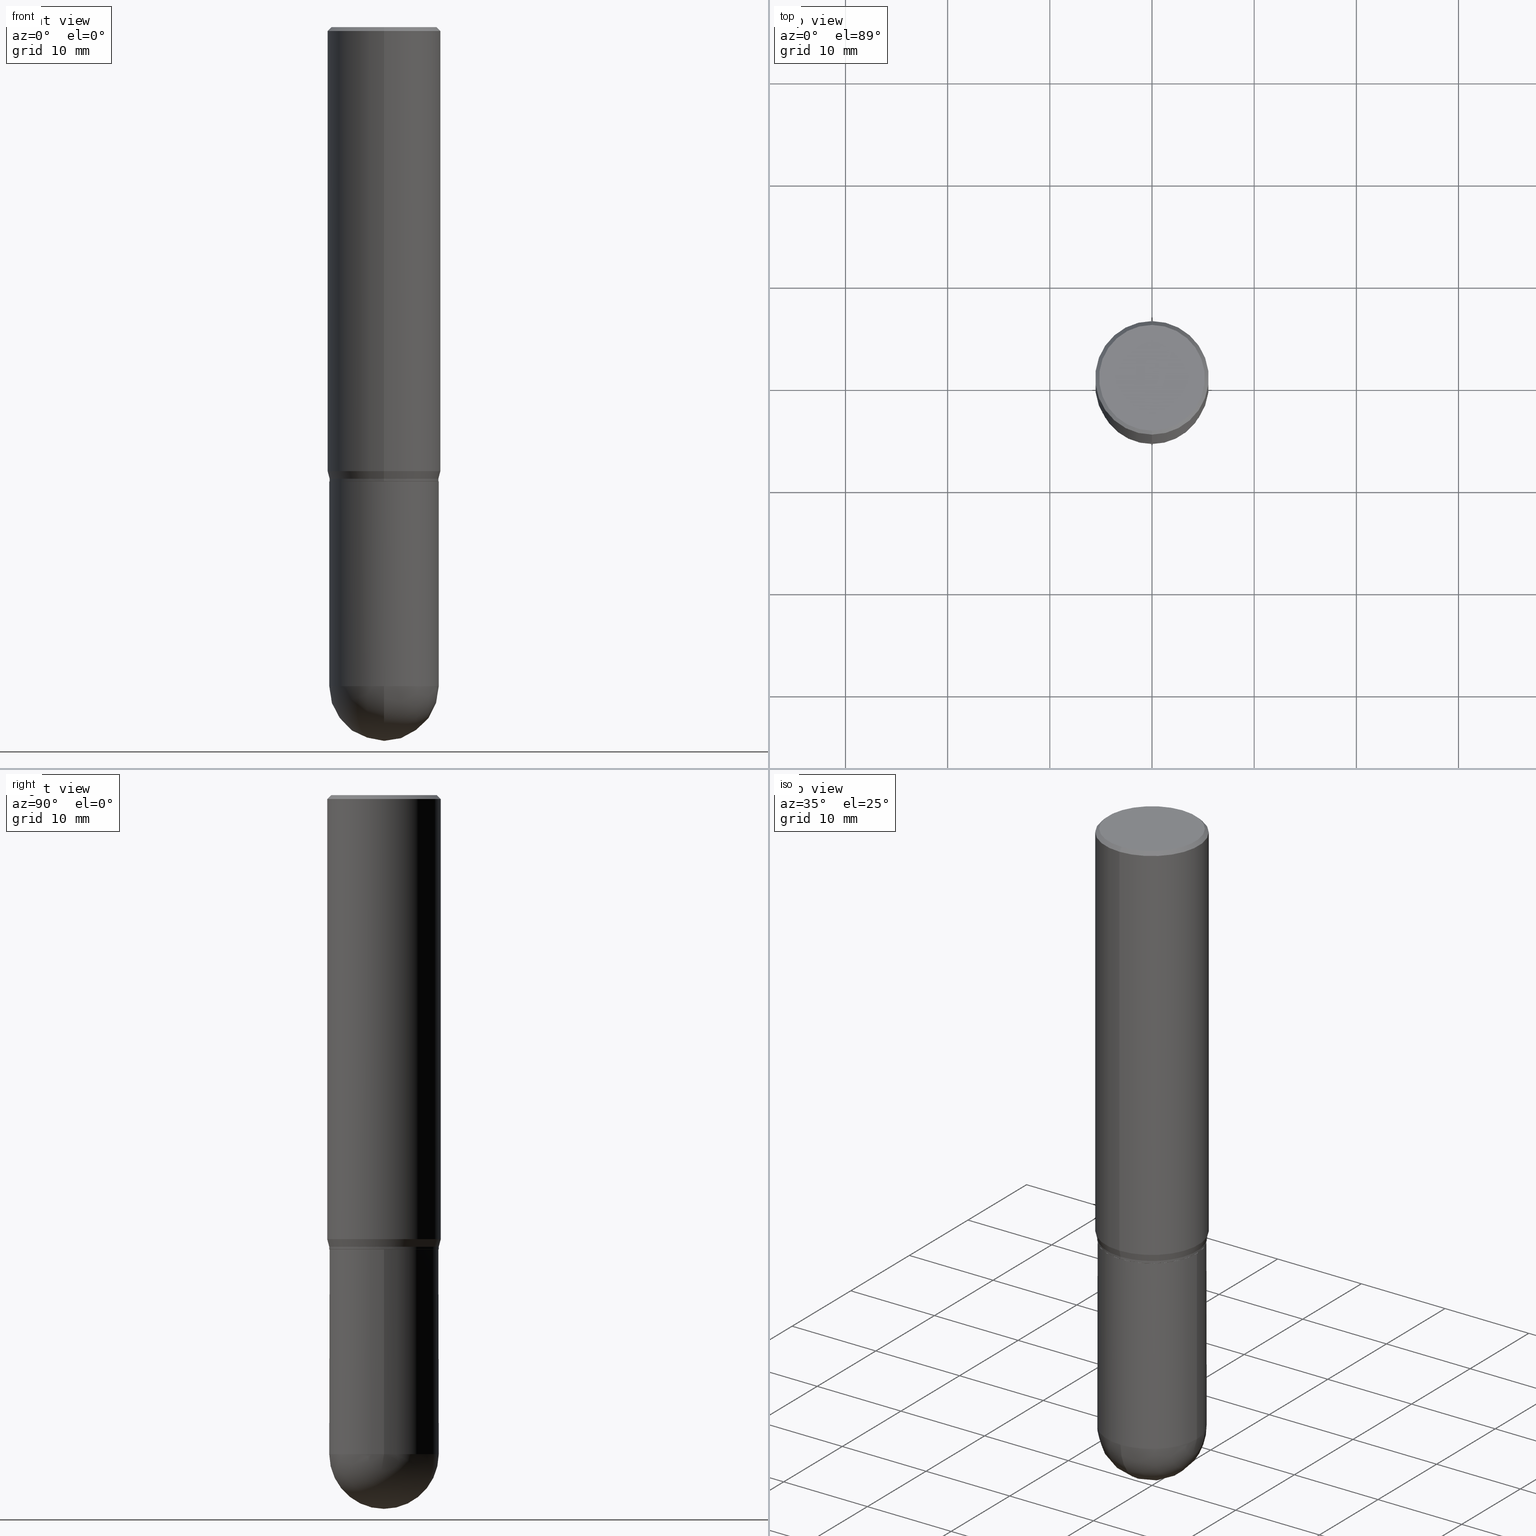
[diagram: canonical four-view strip — front | top / right | iso, engineering-drawing reading convention]
A machine part, canonical four-view strip (front | top / right | iso — engineering-drawing reading convention). The complete STEP part file that produces these views, byte-faithful:
ISO-10303-21;
HEADER;
FILE_DESCRIPTION (( 'STEP AP203' ),
    '1' );
FILE_NAME ('31156.STEP',
    '2024-03-08T15:58:15',
    ( '' ),
    ( '' ),
    'SwSTEP 2.0',
    'SolidWorks 2023',
    '' );
FILE_SCHEMA (( 'CONFIG_CONTROL_DESIGN' ));
ENDSEC;

DATA;
#1 = VERTEX_POINT ( 'NONE', #20 ) ;
#2 = ADVANCED_FACE ( 'NONE', ( #474 ), #89, .T. ) ;
#3 = CARTESIAN_POINT ( 'NONE',  ( -1.469564495519032157E-15, -0.2104500000000061044, -1.749999999999999112 ) ) ;
#4 = ORIENTED_EDGE ( 'NONE', *, *, #338, .T. ) ;
#5 = CC_DESIGN_PERSON_AND_ORGANIZATION_ASSIGNMENT ( #45, #196, ( #509 ) ) ;
#6 = APPROVAL_DATE_TIME ( #482, #406 ) ;
#7 = CIRCLE ( 'NONE', #248, 0.2109499999999999986 ) ;
#8 = CARTESIAN_POINT ( 'NONE',  ( 0.000000000000000000, 0.000000000000000000, 0.000000000000000000 ) ) ;
#9 = AXIS2_PLACEMENT_3D ( 'NONE', #388, #416, #184 ) ;
#10 = ADVANCED_FACE ( 'NONE', ( #164 ), #312, .F. ) ;
#11 = DIRECTION ( 'NONE',  ( -1.000000000000000000, 6.982962677686265922E-15, -4.876176775795935793E-29 ) ) ;
#12 = CARTESIAN_POINT ( 'NONE',  ( 4.947503764566649737E-45, -7.065199232121014556E-31, -2.023341926121067347E-16 ) ) ;
#13 = COORDINATED_UNIVERSAL_TIME_OFFSET ( 5, 0, .BEHIND. ) ;
#14 = CARTESIAN_POINT ( 'NONE',  ( -1.449280202029235538E-15, -0.2037499999999999867, 5.091295125384984246E-16 ) ) ;
#15 = LENGTH_MEASURE_WITH_UNIT ( LENGTH_MEASURE( 0.02539999999999999897 ), #120 );
#16 = DIRECTION ( 'NONE',  ( -6.982962677686265133E-15, -1.000000000000000000, 3.492862791899308071E-15 ) ) ;
#17 = AXIS2_PLACEMENT_3D ( 'NONE', #443, #125, #236 ) ;
#18 = APPROVAL_PERSON_ORGANIZATION ( #200, #406, #352 ) ;
#19 = CARTESIAN_POINT ( 'NONE',  ( 0.000000000000000000, 0.000000000000000000, 0.000000000000000000 ) ) ;
#20 = CARTESIAN_POINT ( 'NONE',  ( 0.2109500000000000541, -8.960624995040515044E-15, -2.539050000000000473 ) ) ;
#21 = DIRECTION ( 'NONE',  ( -1.807323732225332111E-15, -0.2588190451025184635, 0.9659258262890689783 ) ) ;
#22 = CC_DESIGN_PERSON_AND_ORGANIZATION_ASSIGNMENT ( #123, #86, ( #509 ) ) ;
#23 = CARTESIAN_POINT ( 'NONE',  ( 1.473055976857980082E-15, 0.2109499999999912001, -2.539050000000000917 ) ) ;
#24 = VERTEX_POINT ( 'NONE', #48 ) ;
#25 = AXIS2_PLACEMENT_3D ( 'NONE', #12, #279, #436 ) ;
#26 = DIRECTION ( 'NONE',  ( -2.445213881398419455E-29, 3.491846405647142426E-15, 1.000000000000000000 ) ) ;
#27 = EDGE_LOOP ( 'NONE', ( #421, #94, #380, #134 ) ) ;
#28 = DIRECTION ( 'NONE',  ( -2.445213881398419455E-29, 3.491846405647142426E-15, 1.000000000000000000 ) ) ;
#29 = ORIENTED_EDGE ( 'NONE', *, *, #154, .T. ) ;
#30 = DIRECTION ( 'NONE',  ( -2.445213881398419174E-29, 3.491846405647142032E-15, 1.000000000000000000 ) ) ;
#31 = ORIENTED_EDGE ( 'NONE', *, *, #502, .T. ) ;
#32 = CIRCLE ( 'NONE', #385, 0.2109500000000000541 ) ;
#33 = CIRCLE ( 'NONE', #356, 0.2109500000000001096 ) ;
#34 = DIRECTION ( 'NONE',  ( -1.000000000000000000, 7.105427357601001070E-15, -4.926315508542082329E-29 ) ) ;
#35 = LINE ( 'NONE', #3, #321 ) ;
#36 = DIRECTION ( 'NONE',  ( -6.982962677686265133E-15, -1.000000000000000000, 3.491846405647142032E-15 ) ) ;
#37 = CIRCLE ( 'NONE', #225, 0.2187500000000000000 ) ;
#38 = LOCAL_TIME ( 10, 58, 15.00000000000000000, #442 ) ;
#39 = DIRECTION ( 'NONE',  ( -2.445468806185136597E-29, 3.491481338843145583E-15, 1.000000000000000000 ) ) ;
#40 = VECTOR ( 'NONE', #463, 39.37007874015748143 ) ;
#41 = ORIENTED_EDGE ( 'NONE', *, *, #70, .F. ) ;
#42 = ORIENTED_EDGE ( 'NONE', *, *, #273, .T. ) ;
#43 = DIRECTION ( 'NONE',  ( -6.982962677686265133E-15, -1.000000000000000000, 3.885064698266314873E-15 ) ) ;
#44 = EDGE_LOOP ( 'NONE', ( #382, #364, #136, #420, #469 ) ) ;
#45 = PERSON_AND_ORGANIZATION ( #491, #251 ) ;
#46 = ORIENTED_EDGE ( 'NONE', *, *, #476, .F. ) ;
#47 = DIRECTION ( 'NONE',  ( -2.445468806185136877E-29, 3.491481338843145188E-15, 1.000000000000000000 ) ) ;
#48 = CARTESIAN_POINT ( 'NONE',  ( -1.527523085743870054E-15, -0.2187500000000000555, -0.01499999999999943913 ) ) ;
#49 = APPROVAL_STATUS ( 'not_yet_approved' ) ;
#50 = DIRECTION ( 'NONE',  ( 2.445213881398419455E-29, -3.491846405647142032E-15, -1.000000000000000000 ) ) ;
#51 = DIRECTION ( 'NONE',  ( 1.000000000000000000, 0.000000000000000000, 0.000000000000000000 ) ) ;
#52 = LINE ( 'NONE', #206, #106 ) ;
#53 = VECTOR ( 'NONE', #212, 39.37007874015748143 ) ;
#54 = DIRECTION ( 'NONE',  ( 1.000000000000000000, -6.982962677686265133E-15, 0.000000000000000000 ) ) ;
#55 = APPROVAL_ROLE ( '' ) ;
#56 = ADVANCED_BREP_SHAPE_REPRESENTATION ( '31156', ( #300, #160, #233 ), #376 ) ;
#57 = CARTESIAN_POINT ( 'NONE',  ( 4.279124292447233275E-29, -6.110731209882498753E-15, -1.750000000000000000 ) ) ;
#58 = ADVANCED_FACE ( 'NONE', ( #128 ), #238, .T. ) ;
#59 = CARTESIAN_POINT ( 'NONE',  ( 6.209167572344372023E-29, -8.865045693389689499E-15, -2.539050000000000473 ) ) ;
#60 = AXIS2_PLACEMENT_3D ( 'NONE', #331, #26, #246 ) ;
#61 = LOCAL_TIME ( 10, 58, 15.00000000000000000, #435 ) ;
#62 = DIRECTION ( 'NONE',  ( 2.445213881398419455E-29, -3.491846405647142426E-15, -1.000000000000000000 ) ) ;
#63 = VERTEX_POINT ( 'NONE', #347 ) ;
#64 = PERSON_AND_ORGANIZATION ( #491, #251 ) ;
#65 = DIRECTION ( 'NONE',  ( 1.000000000000000000, -6.982962677686265133E-15, 0.000000000000000000 ) ) ;
#66 = ORIENTED_EDGE ( 'NONE', *, *, #428, .F. ) ;
#67 = FACE_OUTER_BOUND ( 'NONE', #27, .T. ) ;
#68 = DIRECTION ( 'NONE',  ( 1.000000000000000000, -6.982962677686266711E-15, 0.000000000000000000 ) ) ;
#69 = ORIENTED_EDGE ( 'NONE', *, *, #219, .T. ) ;
#70 = EDGE_CURVE ( 'NONE', #1, #177, #52, .T. ) ;
#71 = DIRECTION ( 'NONE',  ( 1.000000000000000000, -6.982962677686265133E-15, 0.000000000000000000 ) ) ;
#72 = EDGE_CURVE ( 'NONE', #153, #24, #181, .T. ) ;
#73 = CARTESIAN_POINT ( 'NONE',  ( 4.279570410823988484E-29, -6.110092342975504671E-15, -1.750000000000000000 ) ) ;
#74 = ORIENTED_EDGE ( 'NONE', *, *, #142, .T. ) ;
#75 = CIRCLE ( 'NONE', #507, 0.2109499999999999431 ) ;
#76 = VECTOR ( 'NONE', #261, 39.37007874015748143 ) ;
#77 = CARTESIAN_POINT ( 'NONE',  ( 4.254672153633250193E-29, -6.075812745826027214E-15, -1.739999999999999991 ) ) ;
#78 = ORIENTED_EDGE ( 'NONE', *, *, #363, .T. ) ;
#79 = PERSON_AND_ORGANIZATION_ROLE ( 'creator' ) ;
#80 = ORIENTED_EDGE ( 'NONE', *, *, #72, .T. ) ;
#81 = CALENDAR_DATE ( 2024, 8, 3 ) ;
#82 = ADVANCED_FACE ( 'NONE', ( #278 ), #158, .F. ) ;
#83 = CARTESIAN_POINT ( 'NONE',  ( 0.000000000000000000, 0.000000000000000000, 0.000000000000000000 ) ) ;
#84 = FACE_OUTER_BOUND ( 'NONE', #151, .T. ) ;
#85 = AXIS2_PLACEMENT_3D ( 'NONE', #77, #191, #43 ) ;
#86 = PERSON_AND_ORGANIZATION_ROLE ( 'design_supplier' ) ;
#87 = CYLINDRICAL_SURFACE ( 'NONE', #259, 0.2109500000000000541 ) ;
#88 =( NAMED_UNIT ( * ) PLANE_ANGLE_UNIT ( ) SI_UNIT ( $, .RADIAN. ) );
#89 = SPHERICAL_SURFACE ( 'NONE', #17, 0.2109500000000001096 ) ;
#90 = CARTESIAN_POINT ( 'NONE',  ( 1.475150865661223764E-15, 0.2037499999999999867, -9.137978977627119434E-16 ) ) ;
#91 = VECTOR ( 'NONE', #47, 39.37007874015748143 ) ;
#92 = AXIS2_PLACEMENT_3D ( 'NONE', #294, #499, #422 ) ;
#93 = CARTESIAN_POINT ( 'NONE',  ( 3.667820822097679051E-31, -5.237769608470784415E-17, -0.01500000000000020241 ) ) ;
#94 = ORIENTED_EDGE ( 'NONE', *, *, #256, .T. ) ;
#95 = LINE ( 'NONE', #360, #189 ) ;
#96 = EDGE_CURVE ( 'NONE', #24, #153, #37, .T. ) ;
#97 = VERTEX_POINT ( 'NONE', #14 ) ;
#98 = FACE_OUTER_BOUND ( 'NONE', #350, .T. ) ;
#99 = AXIS2_PLACEMENT_3D ( 'NONE', #139, #283, #65 ) ;
#100 = ORIENTED_EDGE ( 'NONE', *, *, #287, .F. ) ;
#101 = CC_DESIGN_SECURITY_CLASSIFICATION ( #133, ( #509 ) ) ;
#102 = DIRECTION ( 'NONE',  ( -2.445213881398419455E-29, 3.491846405647142426E-15, 1.000000000000000000 ) ) ;
#103 = ORIENTED_EDGE ( 'NONE', *, *, #451, .F. ) ;
#104 = DIRECTION ( 'NONE',  ( 1.000000000000000000, -6.982962677686266711E-15, 0.000000000000000000 ) ) ;
#105 = CARTESIAN_POINT ( 'NONE',  ( 4.254672153633250193E-29, -6.075812745826027214E-15, -1.739999999999999991 ) ) ;
#106 = VECTOR ( 'NONE', #359, 39.37007874015748143 ) ;
#107 = APPROVAL_PERSON_ORGANIZATION ( #64, #274, #55 ) ;
#108 = FACE_OUTER_BOUND ( 'NONE', #112, .T. ) ;
#109 = ADVANCED_FACE ( 'NONE', ( #234 ), #305, .T. ) ;
#110 = CC_DESIGN_PERSON_AND_ORGANIZATION_ASSIGNMENT ( #272, #237, ( #439 ) ) ;
#111 = DIRECTION ( 'NONE',  ( -7.105427357601001070E-15, -1.000000000000000000, 0.000000000000000000 ) ) ;
#112 = EDGE_LOOP ( 'NONE', ( #221, #247, #224, #471 ) ) ;
#113 = CARTESIAN_POINT ( 'NONE',  ( 3.667820822097679051E-31, -5.237769608470784415E-17, -0.01500000000000020241 ) ) ;
#114 = EDGE_LOOP ( 'NONE', ( #423, #394, #163, #494 ) ) ;
#115 = VERTEX_POINT ( 'NONE', #90 ) ;
#116 = AXIS2_PLACEMENT_3D ( 'NONE', #400, #50, #402 ) ;
#117 = AXIS2_PLACEMENT_3D ( 'NONE', #73, #299, #68 ) ;
#118 = CARTESIAN_POINT ( 'NONE',  ( 1.554312234475218762E-15, 0.2187500000000000000, -7.638414012353123441E-16 ) ) ;
#119 = ORIENTED_EDGE ( 'NONE', *, *, #129, .F. ) ;
#120 =( LENGTH_UNIT ( ) NAMED_UNIT ( * ) SI_UNIT ( $, .METRE. ) );
#121 = DIRECTION ( 'NONE',  ( 6.982962677686265133E-15, 1.000000000000000000, -2.590043132177541277E-15 ) ) ;
#122 = CARTESIAN_POINT ( 'NONE',  ( 1.526601067780616758E-15, 0.2109499999999938646, -1.740000000000000879 ) ) ;
#123 = PERSON_AND_ORGANIZATION ( #491, #251 ) ;
#124 = AXIS2_PLACEMENT_3D ( 'NONE', #326, #292, #412 ) ;
#125 = DIRECTION ( 'NONE',  ( -1.000000000000000000, 6.982962677686265133E-15, -4.883557194083112340E-29 ) ) ;
#126 = DATE_TIME_ROLE ( 'creation_date' ) ;
#127 = CARTESIAN_POINT ( 'NONE',  ( -0.2109500000000000541, 1.498889901085931727E-15, -1.037649357289272662E-29 ) ) ;
#128 = FACE_OUTER_BOUND ( 'NONE', #339, .T. ) ;
#129 = EDGE_CURVE ( 'NONE', #156, #433, #75, .T. ) ;
#130 = EDGE_CURVE ( 'NONE', #214, #336, #199, .T. ) ;
#131 = DIRECTION ( 'NONE',  ( -2.445468806185136597E-29, 3.491481338843145583E-15, 1.000000000000000000 ) ) ;
#132 = VECTOR ( 'NONE', #173, 39.37007874015748143 ) ;
#133 = SECURITY_CLASSIFICATION ( '', '', #235 ) ;
#134 = ORIENTED_EDGE ( 'NONE', *, *, #313, .F. ) ;
#135 = DIRECTION ( 'NONE',  ( -2.445468806185136597E-29, 3.491481338843145583E-15, 1.000000000000000000 ) ) ;
#136 = ORIENTED_EDGE ( 'NONE', *, *, #239, .T. ) ;
#137 = CALENDAR_DATE ( 2024, 8, 3 ) ;
#138 = DIRECTION ( 'NONE',  ( 4.937700262164548831E-15, 0.7071067811865452413, -0.7071067811865497932 ) ) ;
#139 = CARTESIAN_POINT ( 'NONE',  ( 6.209167572344372023E-29, -8.865045693389689499E-15, -2.539050000000000473 ) ) ;
#140 = ADVANCED_FACE ( 'NONE', ( #161 ), #478, .T. ) ;
#141 = AXIS2_PLACEMENT_3D ( 'NONE', #83, #197, #271 ) ;
#142 = EDGE_CURVE ( 'NONE', #97, #115, #427, .T. ) ;
#143 = DIRECTION ( 'NONE',  ( -6.982962677686265133E-15, -1.000000000000000000, 3.746534391310989557E-15 ) ) ;
#144 = PLANE ( 'NONE',  #349 ) ;
#145 = ORIENTED_EDGE ( 'NONE', *, *, #428, .T. ) ;
#146 = CARTESIAN_POINT ( 'NONE',  ( 0.000000000000000000, 0.000000000000000000, 0.000000000000000000 ) ) ;
#147 = VERTEX_POINT ( 'NONE', #231 ) ;
#148 = AXIS2_PLACEMENT_3D ( 'NONE', #213, #28, #143 ) ;
#149 = LOCAL_TIME ( 10, 58, 15.00000000000000000, #484 ) ;
#150 = CYLINDRICAL_SURFACE ( 'NONE', #397, 0.2109500000000000541 ) ;
#151 = EDGE_LOOP ( 'NONE', ( #78, #171, #501, #41, #193 ) ) ;
#152 = DIRECTION ( 'NONE',  ( -4.937700262164715281E-15, -0.7071067811865691111, 0.7071067811865257013 ) ) ;
#153 = VERTEX_POINT ( 'NONE', #399 ) ;
#154 = EDGE_CURVE ( 'NONE', #377, #244, #250, .T. ) ;
#155 = FACE_OUTER_BOUND ( 'NONE', #511, .T. ) ;
#156 = VERTEX_POINT ( 'NONE', #122 ) ;
#157 = AXIS2_PLACEMENT_3D ( 'NONE', #483, #204, #202 ) ;
#158 = PLANE ( 'NONE',  #460 ) ;
#159 =( CONVERSION_BASED_UNIT ( 'INCH', #15 ) LENGTH_UNIT ( ) NAMED_UNIT ( #441 ) );
#160 = MANIFOLD_SOLID_BREP ( 'Body-Move/Copy2[2]', #372 ) ;
#161 = FACE_OUTER_BOUND ( 'NONE', #291, .T. ) ;
#162 = PERSON_AND_ORGANIZATION ( #491, #251 ) ;
#163 = ORIENTED_EDGE ( 'NONE', *, *, #252, .F. ) ;
#164 = FACE_OUTER_BOUND ( 'NONE', #170, .T. ) ;
#165 = VECTOR ( 'NONE', #343, 39.37007874015748143 ) ;
#166 = CARTESIAN_POINT ( 'NONE',  ( 4.254672153633250193E-29, -6.075812745826027214E-15, -1.739999999999999991 ) ) ;
#167 = DIRECTION ( 'NONE',  ( -2.445213881398419455E-29, 3.491846405647142426E-15, 1.000000000000000000 ) ) ;
#168 = COORDINATED_UNIVERSAL_TIME_OFFSET ( 5, 0, .BEHIND. ) ;
#169 = CARTESIAN_POINT ( 'NONE',  ( 1.495337187407173427E-15, 0.2104499999999938920, -1.750000000000000666 ) ) ;
#170 = EDGE_LOOP ( 'NONE', ( #31, #74 ) ) ;
#171 = ORIENTED_EDGE ( 'NONE', *, *, #130, .T. ) ;
#172 = APPROVAL_STATUS ( 'not_yet_approved' ) ;
#173 = DIRECTION ( 'NONE',  ( 1.839019923739602287E-15, 0.2588190451025252359, 0.9659258262890670910 ) ) ;
#174 = CIRCLE ( 'NONE', #452, 0.2109500000000000541 ) ;
#175 = ORIENTED_EDGE ( 'NONE', *, *, #273, .F. ) ;
#176 = CARTESIAN_POINT ( 'NONE',  ( 0.000000000000000000, 0.000000000000000000, 0.000000000000000000 ) ) ;
#177 = VERTEX_POINT ( 'NONE', #438 ) ;
#178 = DIRECTION ( 'NONE',  ( -6.982962677686265133E-15, -1.000000000000000000, 3.885064698266314873E-15 ) ) ;
#179 = FACE_OUTER_BOUND ( 'NONE', #498, .T. ) ;
#180 = CLOSED_SHELL ( 'NONE', ( #185, #109, #503, #2, #375 ) ) ;
#181 = CIRCLE ( 'NONE', #157, 0.2187500000000000000 ) ;
#182 = AXIS2_PLACEMENT_3D ( 'NONE', #384, #188, #424 ) ;
#183 = DIRECTION ( 'NONE',  ( -6.982962677686265133E-15, -1.000000000000000000, 3.885064698266314873E-15 ) ) ;
#184 = DIRECTION ( 'NONE',  ( -6.982962677686265133E-15, -1.000000000000000000, 3.746534391310989557E-15 ) ) ;
#185 = ADVANCED_FACE ( 'NONE', ( #84 ), #87, .T. ) ;
#186 = ADVANCED_FACE ( 'NONE', ( #98 ), #480, .T. ) ;
#187 = DESIGN_CONTEXT ( 'detailed design', #387, 'design' ) ;
#188 = DIRECTION ( 'NONE',  ( -2.445213881398419455E-29, 3.491846405647142426E-15, 1.000000000000000000 ) ) ;
#189 = VECTOR ( 'NONE', #138, 39.37007874015748143 ) ;
#190 = CIRCLE ( 'NONE', #9, 0.2187500000000000000 ) ;
#191 = DIRECTION ( 'NONE',  ( -2.445213881398419455E-29, 3.491846405647142426E-15, 1.000000000000000000 ) ) ;
#192 = ORIENTED_EDGE ( 'NONE', *, *, #418, .T. ) ;
#193 = ORIENTED_EDGE ( 'NONE', *, *, #345, .T. ) ;
#194 = FACE_OUTER_BOUND ( 'NONE', #413, .T. ) ;
#195 = ORIENTED_EDGE ( 'NONE', *, *, #327, .T. ) ;
#196 = PERSON_AND_ORGANIZATION_ROLE ( 'creator' ) ;
#197 = DIRECTION ( 'NONE',  ( -2.445213881398419455E-29, 3.491846405647142426E-15, 1.000000000000000000 ) ) ;
#198 = DATE_AND_TIME ( #81, #61 ) ;
#199 = LINE ( 'NONE', #127, #91 ) ;
#200 = PERSON_AND_ORGANIZATION ( #491, #251 ) ;
#201 = EDGE_CURVE ( 'NONE', #433, #156, #468, .T. ) ;
#202 = DIRECTION ( 'NONE',  ( -6.982962677686265133E-15, -1.000000000000000000, 3.492862791899308071E-15 ) ) ;
#203 = CARTESIAN_POINT ( 'NONE',  ( 1.498889901085973931E-15, 0.2109499999999939202, -1.749500000000000721 ) ) ;
#204 = DIRECTION ( 'NONE',  ( -2.445213881398419455E-29, 3.491846405647142426E-15, 1.000000000000000000 ) ) ;
#205 = CIRCLE ( 'NONE', #268, 0.2109500000000000541 ) ;
#206 = CARTESIAN_POINT ( 'NONE',  ( 0.2109500000000000541, -1.473055976857918157E-15, 1.028629490854152908E-29 ) ) ;
#207 = EDGE_CURVE ( 'NONE', #500, #433, #286, .T. ) ;
#208 = DIRECTION ( 'NONE',  ( -2.445213881398419455E-29, 3.491846405647142426E-15, 1.000000000000000000 ) ) ;
#209 = CARTESIAN_POINT ( 'NONE',  ( 1.498889901085973142E-15, 0.2109499999999938646, -1.740000000000000879 ) ) ;
#210 = EDGE_LOOP ( 'NONE', ( #383, #263, #195, #103 ) ) ;
#211 = LINE ( 'NONE', #169, #479 ) ;
#212 = DIRECTION ( 'NONE',  ( -4.851104656540965064E-15, -0.7071067811865501263, -0.7071067811865449082 ) ) ;
#213 = CARTESIAN_POINT ( 'NONE',  ( 4.183491986595387463E-29, -5.974165109880832993E-15, -1.710890003700962669 ) ) ;
#214 = VERTEX_POINT ( 'NONE', #408 ) ;
#215 = CARTESIAN_POINT ( 'NONE',  ( -1.473055976857874769E-15, -0.2109500000000060216, -1.739999999999999103 ) ) ;
#216 = AXIS2_PLACEMENT_3D ( 'NONE', #450, #414, #178 ) ;
#217 = ORIENTED_EDGE ( 'NONE', *, *, #429, .T. ) ;
#218 = CARTESIAN_POINT ( 'NONE',  ( 4.277901685506535214E-29, -6.108985286679675728E-15, -1.749500000000000055 ) ) ;
#219 = EDGE_CURVE ( 'NONE', #500, #505, #281, .T. ) ;
#220 = FACE_OUTER_BOUND ( 'NONE', #466, .T. ) ;
#221 = ORIENTED_EDGE ( 'NONE', *, *, #390, .F. ) ;
#222 = ORIENTED_EDGE ( 'NONE', *, *, #201, .F. ) ;
#223 = DIRECTION ( 'NONE',  ( 6.982962677686265133E-15, 1.000000000000000000, -3.492862791899308071E-15 ) ) ;
#224 = ORIENTED_EDGE ( 'NONE', *, *, #409, .T. ) ;
#225 = AXIS2_PLACEMENT_3D ( 'NONE', #445, #355, #16 ) ;
#226 = LINE ( 'NONE', #301, #40 ) ;
#227 = ORIENTED_EDGE ( 'NONE', *, *, #328, .F. ) ;
#228 = DATE_AND_TIME ( #269, #149 ) ;
#229 = PERSON_AND_ORGANIZATION_ROLE ( 'classification_officer' ) ;
#230 = CC_DESIGN_PERSON_AND_ORGANIZATION_ASSIGNMENT ( #162, #79, ( #285 ) ) ;
#231 = CARTESIAN_POINT ( 'NONE',  ( 1.497113544246573482E-15, 0.2104499999999938920, -1.750000000000000666 ) ) ;
#232 = ADVANCED_FACE ( 'NONE', ( #179 ), #330, .T. ) ;
#233 = AXIS2_PLACEMENT_3D ( 'NONE', #19, #395, #51 ) ;
#234 = FACE_OUTER_BOUND ( 'NONE', #114, .T. ) ;
#235 = SECURITY_CLASSIFICATION_LEVEL ( 'unclassified' ) ;
#236 = DIRECTION ( 'NONE',  ( 6.982962677686265133E-15, 1.000000000000000000, -2.590043132177541277E-15 ) ) ;
#237 = PERSON_AND_ORGANIZATION_ROLE ( 'design_owner' ) ;
#238 = CYLINDRICAL_SURFACE ( 'NONE', #495, 0.2187500000000000000 ) ;
#239 = EDGE_CURVE ( 'NONE', #267, #1, #205, .T. ) ;
#240 = CIRCLE ( 'NONE', #410, 0.2104499999999999982 ) ;
#241 = LOCAL_TIME ( 10, 58, 15.00000000000000000, #168 ) ;
#242 = DIRECTION ( 'NONE',  ( -2.445213881398419455E-29, 3.491846405647142426E-15, 1.000000000000000000 ) ) ;
#243 = DIRECTION ( 'NONE',  ( -2.445468806185136597E-29, 3.491481338843145583E-15, 1.000000000000000000 ) ) ;
#244 = VERTEX_POINT ( 'NONE', #23 ) ;
#245 = APPROVAL_DATE_TIME ( #319, #274 ) ;
#246 = DIRECTION ( 'NONE',  ( -6.982962677686265133E-15, -1.000000000000000000, 3.885064698266314873E-15 ) ) ;
#247 = ORIENTED_EDGE ( 'NONE', *, *, #451, .T. ) ;
#248 = AXIS2_PLACEMENT_3D ( 'NONE', #316, #371, #104 ) ;
#249 = CARTESIAN_POINT ( 'NONE',  ( -1.500733937012521740E-15, -0.2187500000000000555, -0.01499999999999943913 ) ) ;
#250 = CIRCLE ( 'NONE', #295, 0.2109500000000001096 ) ;
#251 = ORGANIZATION ( 'UNSPECIFIED', 'UNSPECIFIED', '' ) ;
#252 = EDGE_CURVE ( 'NONE', #214, #267, #373, .T. ) ;
#253 = DIRECTION ( 'NONE',  ( 5.024295867788231995E-15, 0.7071067811865739960, 0.7071067811865208164 ) ) ;
#254 = ORIENTED_EDGE ( 'NONE', *, *, #361, .T. ) ;
#255 = DIRECTION ( 'NONE',  ( -2.445468806185136597E-29, 3.491481338843145583E-15, 1.000000000000000000 ) ) ;
#256 = EDGE_CURVE ( 'NONE', #97, #24, #488, .T. ) ;
#257 = CARTESIAN_POINT ( 'NONE',  ( 1.554312234475260769E-15, 0.2187499999999940603, -1.710890003700963558 ) ) ;
#258 = ORIENTED_EDGE ( 'NONE', *, *, #313, .T. ) ;
#259 = AXIS2_PLACEMENT_3D ( 'NONE', #176, #255, #289 ) ;
#260 = APPROVAL_PERSON_ORGANIZATION ( #277, #358, #473 ) ;
#261 = DIRECTION ( 'NONE',  ( -2.445213881398419174E-29, 3.491846405647142032E-15, 1.000000000000000000 ) ) ;
#262 = ORIENTED_EDGE ( 'NONE', *, *, #390, .T. ) ;
#263 = ORIENTED_EDGE ( 'NONE', *, *, #129, .T. ) ;
#264 = LINE ( 'NONE', #118, #165 ) ;
#265 = ADVANCED_FACE ( 'NONE', ( #490 ), #454, .T. ) ;
#266 = CARTESIAN_POINT ( 'NONE',  ( 0.000000000000000000, 0.000000000000000000, 0.000000000000000000 ) ) ;
#267 = VERTEX_POINT ( 'NONE', #366 ) ;
#268 = AXIS2_PLACEMENT_3D ( 'NONE', #59, #131, #54 ) ;
#269 = CALENDAR_DATE ( 2024, 8, 3 ) ;
#270 = PERSON_AND_ORGANIZATION ( #491, #251 ) ;
#271 = DIRECTION ( 'NONE',  ( -6.982962677686265133E-15, -1.000000000000000000, 3.491846405647142426E-15 ) ) ;
#272 = PERSON_AND_ORGANIZATION ( #491, #251 ) ;
#273 = EDGE_CURVE ( 'NONE', #63, #415, #403, .T. ) ;
#274 = APPROVAL ( #172, 'UNSPECIFIED' ) ;
#275 = CARTESIAN_POINT ( 'NONE',  ( 6.191127839474132236E-29, -8.890879617617701491E-15, -2.539049999999999585 ) ) ;
#276 = CC_DESIGN_APPROVAL ( #358, ( #509 ) ) ;
#277 = PERSON_AND_ORGANIZATION ( #491, #251 ) ;
#278 = FACE_OUTER_BOUND ( 'NONE', #379, .T. ) ;
#279 = DIRECTION ( 'NONE',  ( -2.445213881398419455E-29, 3.491846405647142426E-15, 1.000000000000000000 ) ) ;
#280 = DIRECTION ( 'NONE',  ( -6.982962677686265922E-15, -1.000000000000000000, 3.491846405647142032E-15 ) ) ;
#281 = CIRCLE ( 'NONE', #216, 0.2109499999999999431 ) ;
#282 = CARTESIAN_POINT ( 'NONE',  ( 6.209167572344372023E-29, -8.865045693389689499E-15, -2.539050000000000473 ) ) ;
#283 = DIRECTION ( 'NONE',  ( -2.445468806185136597E-29, 3.491481338843145583E-15, 1.000000000000000000 ) ) ;
#284 = EDGE_LOOP ( 'NONE', ( #457, #29, #389, #455 ) ) ;
#285 = PRODUCT_DEFINITION ( 'UNKNOWN', '', #509, #187 ) ;
#286 = LINE ( 'NONE', #497, #320 ) ;
#287 = EDGE_CURVE ( 'NONE', #370, #147, #240, .T. ) ;
#288 = AXIS2_PLACEMENT_3D ( 'NONE', #275, #308, #121 ) ;
#289 = DIRECTION ( 'NONE',  ( 1.000000000000000000, -6.982962677686265922E-15, 4.876176775795935793E-29 ) ) ;
#290 = CONICAL_SURFACE ( 'NONE', #341, 0.2109499999999999431, 0.2617993877991505736 ) ;
#291 = EDGE_LOOP ( 'NONE', ( #69, #192, #222, #449 ) ) ;
#292 = DIRECTION ( 'NONE',  ( -2.445213881398419455E-29, 3.491846405647142426E-15, 1.000000000000000000 ) ) ;
#293 = FACE_OUTER_BOUND ( 'NONE', #44, .T. ) ;
#294 = CARTESIAN_POINT ( 'NONE',  ( 4.947503764566649737E-45, -7.065199232121014556E-31, -2.023341926121067347E-16 ) ) ;
#295 = AXIS2_PLACEMENT_3D ( 'NONE', #351, #306, #475 ) ;
#296 = ORIENTED_EDGE ( 'NONE', *, *, #418, .F. ) ;
#297 = AXIS2_PLACEMENT_3D ( 'NONE', #146, #426, #36 ) ;
#298 = DIRECTION ( 'NONE',  ( 1.000000000000000000, -6.982962677686265922E-15, 4.876176775795935793E-29 ) ) ;
#299 = DIRECTION ( 'NONE',  ( -2.445468806185136597E-29, 3.491481338843145583E-15, 1.000000000000000000 ) ) ;
#300 = MANIFOLD_SOLID_BREP ( 'Body-Move/Copy2[1]', #180 ) ;
#301 = CARTESIAN_POINT ( 'NONE',  ( 1.498889901085930741E-15, 0.2109499999999999431, -7.366049992712644611E-16 ) ) ;
#302 = ORIENTED_EDGE ( 'NONE', *, *, #429, .F. ) ;
#303 = CIRCLE ( 'NONE', #332, 0.2109499999999999431 ) ;
#304 = MECHANICAL_CONTEXT ( 'NONE', #317, 'mechanical' ) ;
#305 = SPHERICAL_SURFACE ( 'NONE', #288, 0.2109500000000001096 ) ;
#306 = DIRECTION ( 'NONE',  ( 1.000000000000000000, -6.982962677686265922E-15, 4.883557194083112340E-29 ) ) ;
#307 =( NAMED_UNIT ( * ) SI_UNIT ( $, .STERADIAN. ) SOLID_ANGLE_UNIT ( ) );
#308 = DIRECTION ( 'NONE',  ( -1.000000000000000000, 6.982962677686265133E-15, -4.883557194083112340E-29 ) ) ;
#309 = CIRCLE ( 'NONE', #365, 0.2104499999999999982 ) ;
#310 = CC_DESIGN_APPROVAL ( #406, ( #285 ) ) ;
#311 = APPLICATION_PROTOCOL_DEFINITION ( 'international standard', 'config_control_design', 1994, #317 ) ;
#312 = PLANE ( 'NONE',  #116 ) ;
#313 = EDGE_CURVE ( 'NONE', #115, #153, #95, .T. ) ;
#314 = DATE_AND_TIME ( #477, #38 ) ;
#315 = CARTESIAN_POINT ( 'NONE',  ( 4.279124292447233275E-29, -6.110731209882498753E-15, -1.750000000000000000 ) ) ;
#316 = CARTESIAN_POINT ( 'NONE',  ( 4.279570410823988484E-29, -6.110092342975504671E-15, -1.750000000000000000 ) ) ;
#317 = APPLICATION_CONTEXT ( 'configuration controlled 3d designs of mechanical parts and assemblies' ) ;
#318 = CC_DESIGN_DATE_AND_TIME_ASSIGNMENT ( #314, #126, ( #285 ) ) ;
#319 = DATE_AND_TIME ( #137, #241 ) ;
#320 = VECTOR ( 'NONE', #30, 39.37007874015748143 ) ;
#321 = VECTOR ( 'NONE', #152, 39.37007874015748854 ) ;
#322 = CARTESIAN_POINT ( 'NONE',  ( 6.209167572344372023E-29, -8.865045693389689499E-15, -2.539050000000000473 ) ) ;
#323 = ORIENTED_EDGE ( 'NONE', *, *, #96, .F. ) ;
#324 = DIRECTION ( 'NONE',  ( 6.982962677686265133E-15, 1.000000000000000000, -3.492862791899308071E-15 ) ) ;
#325 = PRODUCT_RELATED_PRODUCT_CATEGORY ( 'detail', '', ( #439 ) ) ;
#326 = CARTESIAN_POINT ( 'NONE',  ( 0.000000000000000000, 0.000000000000000000, 0.000000000000000000 ) ) ;
#327 = EDGE_CURVE ( 'NONE', #433, #63, #456, .T. ) ;
#328 = EDGE_CURVE ( 'NONE', #147, #505, #211, .T. ) ;
#329 = ORIENTED_EDGE ( 'NONE', *, *, #327, .F. ) ;
#330 = CONICAL_SURFACE ( 'NONE', #486, 0.2187500000000000000, 0.7853981633974485010 ) ;
#331 = CARTESIAN_POINT ( 'NONE',  ( 4.254672153633250193E-29, -6.075812745826027214E-15, -1.739999999999999991 ) ) ;
#332 = AXIS2_PLACEMENT_3D ( 'NONE', #218, #335, #183 ) ;
#333 = CARTESIAN_POINT ( 'NONE',  ( -1.473055976857874375E-15, -0.2109500000000059383, -1.749499999999999167 ) ) ;
#334 = ORIENTED_EDGE ( 'NONE', *, *, #502, .F. ) ;
#335 = DIRECTION ( 'NONE',  ( -2.445213881398419455E-29, 3.491846405647142426E-15, 1.000000000000000000 ) ) ;
#336 = VERTEX_POINT ( 'NONE', #446 ) ;
#337 = DIRECTION ( 'NONE',  ( -6.982962677686265133E-15, -1.000000000000000000, 3.885064698266314873E-15 ) ) ;
#338 = EDGE_CURVE ( 'NONE', #177, #336, #7, .T. ) ;
#339 = EDGE_LOOP ( 'NONE', ( #42, #262, #323, #386 ) ) ;
#340 = AXIS2_PLACEMENT_3D ( 'NONE', #57, #102, #485 ) ;
#341 = AXIS2_PLACEMENT_3D ( 'NONE', #105, #465, #337 ) ;
#342 = LINE ( 'NONE', #381, #76 ) ;
#343 = DIRECTION ( 'NONE',  ( -2.445213881398419174E-29, 3.491846405647142032E-15, 1.000000000000000000 ) ) ;
#344 = ORIENTED_EDGE ( 'NONE', *, *, #430, .T. ) ;
#345 = EDGE_CURVE ( 'NONE', #1, #244, #32, .T. ) ;
#346 = CALENDAR_DATE ( 2024, 8, 3 ) ;
#347 = CARTESIAN_POINT ( 'NONE',  ( -1.527523085743828442E-15, -0.2187500000000059397, -1.710890003700962003 ) ) ;
#348 = VECTOR ( 'NONE', #21, 39.37007874015748854 ) ;
#349 = AXIS2_PLACEMENT_3D ( 'NONE', #437, #354, #11 ) ;
#350 = EDGE_LOOP ( 'NONE', ( #227, #145, #217, #46 ) ) ;
#351 = CARTESIAN_POINT ( 'NONE',  ( 6.191127839474132236E-29, -8.890879617617701491E-15, -2.539049999999999585 ) ) ;
#352 = APPROVAL_ROLE ( '' ) ;
#353 = DIRECTION ( 'NONE',  ( -2.445213881398419455E-29, 3.491846405647142032E-15, 1.000000000000000000 ) ) ;
#354 = DIRECTION ( 'NONE',  ( 2.438088387897960049E-29, -3.491481338843145188E-15, -1.000000000000000000 ) ) ;
#355 = DIRECTION ( 'NONE',  ( -2.445213881398419455E-29, 3.491846405647142426E-15, 1.000000000000000000 ) ) ;
#356 = AXIS2_PLACEMENT_3D ( 'NONE', #374, #34, #111 ) ;
#357 = APPLICATION_PROTOCOL_DEFINITION ( 'international standard', 'config_control_design', 1994, #387 ) ;
#358 = APPROVAL ( #49, 'UNSPECIFIED' ) ;
#359 = DIRECTION ( 'NONE',  ( -2.445468806185136877E-29, 3.491481338843145188E-15, 1.000000000000000000 ) ) ;
#360 = CARTESIAN_POINT ( 'NONE',  ( 1.527523085743871040E-15, 0.2187499999999999167, -0.01500000000000096742 ) ) ;
#361 = EDGE_CURVE ( 'NONE', #156, #415, #362, .T. ) ;
#362 = LINE ( 'NONE', #209, #132 ) ;
#363 = EDGE_CURVE ( 'NONE', #244, #214, #174, .T. ) ;
#364 = ORIENTED_EDGE ( 'NONE', *, *, #252, .T. ) ;
#365 = AXIS2_PLACEMENT_3D ( 'NONE', #458, #467, #504 ) ;
#366 = CARTESIAN_POINT ( 'NONE',  ( -1.498889901085869604E-15, -0.2109500000000089637, -2.539049999999999585 ) ) ;
#367 = ORIENTED_EDGE ( 'NONE', *, *, #328, .T. ) ;
#368 = SHAPE_DEFINITION_REPRESENTATION ( #464, #56 ) ;
#369 = DIRECTION ( 'NONE',  ( -6.982962677686266711E-15, -1.000000000000000000, 3.894295072935514223E-15 ) ) ;
#370 = VERTEX_POINT ( 'NONE', #378 ) ;
#371 = DIRECTION ( 'NONE',  ( -2.445468806185136597E-29, 3.491481338843145583E-15, 1.000000000000000000 ) ) ;
#372 = CLOSED_SHELL ( 'NONE', ( #140, #392, #459, #58, #401, #432, #393, #232, #10, #82, #186, #265 ) ) ;
#373 = CIRCLE ( 'NONE', #99, 0.2109500000000000541 ) ;
#374 = CARTESIAN_POINT ( 'NONE',  ( 6.191127839474132236E-29, -8.890879617617701491E-15, -2.539049999999999585 ) ) ;
#375 = ADVANCED_FACE ( 'NONE', ( #293 ), #150, .T. ) ;
#376 =( GEOMETRIC_REPRESENTATION_CONTEXT ( 3 ) GLOBAL_UNCERTAINTY_ASSIGNED_CONTEXT ( ( #489 ) ) GLOBAL_UNIT_ASSIGNED_CONTEXT ( ( #159, #88, #307 ) ) REPRESENTATION_CONTEXT ( 'NONE', 'WORKASPACE' ) );
#377 = VERTEX_POINT ( 'NONE', #461 ) ;
#378 = CARTESIAN_POINT ( 'NONE',  ( -1.469564495519032157E-15, -0.2104500000000061044, -1.749999999999999112 ) ) ;
#379 = EDGE_LOOP ( 'NONE', ( #100, #66 ) ) ;
#380 = ORIENTED_EDGE ( 'NONE', *, *, #96, .T. ) ;
#381 = CARTESIAN_POINT ( 'NONE',  ( -1.527523085743870449E-15, -0.2187500000000000000, 7.638414012353123441E-16 ) ) ;
#382 = ORIENTED_EDGE ( 'NONE', *, *, #130, .F. ) ;
#383 = ORIENTED_EDGE ( 'NONE', *, *, #361, .F. ) ;
#384 = CARTESIAN_POINT ( 'NONE',  ( 4.279124292447233275E-29, -6.110731209882498753E-15, -1.750000000000000000 ) ) ;
#385 = AXIS2_PLACEMENT_3D ( 'NONE', #282, #243, #407 ) ;
#386 = ORIENTED_EDGE ( 'NONE', *, *, #409, .F. ) ;
#387 = APPLICATION_CONTEXT ( 'configuration controlled 3d designs of mechanical parts and assemblies' ) ;
#388 = CARTESIAN_POINT ( 'NONE',  ( 4.183491986595387463E-29, -5.974165109880832993E-15, -1.710890003700962669 ) ) ;
#389 = ORIENTED_EDGE ( 'NONE', *, *, #345, .F. ) ;
#390 = EDGE_CURVE ( 'NONE', #415, #153, #264, .T. ) ;
#391 = APPROVAL_DATE_TIME ( #228, #358 ) ;
#392 = ADVANCED_FACE ( 'NONE', ( #194 ), #411, .T. ) ;
#393 = ADVANCED_FACE ( 'NONE', ( #108 ), #512, .T. ) ;
#394 = ORIENTED_EDGE ( 'NONE', *, *, #472, .T. ) ;
#395 = DIRECTION ( 'NONE',  ( 0.000000000000000000, 0.000000000000000000, 1.000000000000000000 ) ) ;
#396 = DIRECTION ( 'NONE',  ( -6.982962677686265133E-15, -1.000000000000000000, 3.491846405647142032E-15 ) ) ;
#397 = AXIS2_PLACEMENT_3D ( 'NONE', #266, #39, #298 ) ;
#398 = CC_DESIGN_PERSON_AND_ORGANIZATION_ASSIGNMENT ( #270, #229, ( #133 ) ) ;
#399 = CARTESIAN_POINT ( 'NONE',  ( 1.554312234475260966E-15, 0.2187499999999999167, -0.01500000000000096742 ) ) ;
#400 = CARTESIAN_POINT ( 'NONE',  ( 1.422778645578576487E-15, 0.2037499999999999867, -8.126308014566585884E-16 ) ) ;
#401 = ADVANCED_FACE ( 'NONE', ( #155 ), #496, .T. ) ;
#402 = DIRECTION ( 'NONE',  ( 6.982962677686265922E-15, 1.000000000000000000, -3.491846405647142032E-15 ) ) ;
#403 = CIRCLE ( 'NONE', #148, 0.2187500000000000000 ) ;
#404 = CIRCLE ( 'NONE', #92, 0.2037499999999999867 ) ;
#405 = DIRECTION ( 'NONE',  ( -6.982962677686265133E-15, -1.000000000000000000, 3.885064698266314873E-15 ) ) ;
#406 = APPROVAL ( #431, 'UNSPECIFIED' ) ;
#407 = DIRECTION ( 'NONE',  ( 1.000000000000000000, -6.982962677686265133E-15, 0.000000000000000000 ) ) ;
#408 = CARTESIAN_POINT ( 'NONE',  ( -0.2109500000000000541, -5.988679117096665555E-15, -2.539050000000000473 ) ) ;
#409 = EDGE_CURVE ( 'NONE', #63, #24, #342, .T. ) ;
#410 = AXIS2_PLACEMENT_3D ( 'NONE', #448, #208, #369 ) ;
#411 = CONICAL_SURFACE ( 'NONE', #182, 0.2104499999999999982, 0.7853981633974824739 ) ;
#412 = DIRECTION ( 'NONE',  ( -6.982962677686265133E-15, -1.000000000000000000, 3.491846405647142426E-15 ) ) ;
#413 = EDGE_LOOP ( 'NONE', ( #506, #367, #492, #302 ) ) ;
#414 = DIRECTION ( 'NONE',  ( -2.445213881398419455E-29, 3.491846405647142426E-15, 1.000000000000000000 ) ) ;
#415 = VERTEX_POINT ( 'NONE', #257 ) ;
#416 = DIRECTION ( 'NONE',  ( -2.445213881398419455E-29, 3.491846405647142426E-15, 1.000000000000000000 ) ) ;
#417 = FACE_OUTER_BOUND ( 'NONE', #210, .T. ) ;
#418 = EDGE_CURVE ( 'NONE', #505, #156, #226, .T. ) ;
#419 = LOCAL_TIME ( 10, 58, 15.00000000000000000, #13 ) ;
#420 = ORIENTED_EDGE ( 'NONE', *, *, #70, .T. ) ;
#421 = ORIENTED_EDGE ( 'NONE', *, *, #142, .F. ) ;
#422 = DIRECTION ( 'NONE',  ( -6.982962677686265133E-15, -1.000000000000000000, 3.491846405647142426E-15 ) ) ;
#423 = ORIENTED_EDGE ( 'NONE', *, *, #154, .F. ) ;
#424 = DIRECTION ( 'NONE',  ( -6.982962677686266711E-15, -1.000000000000000000, 3.894295072935514223E-15 ) ) ;
#425 = ORIENTED_EDGE ( 'NONE', *, *, #201, .T. ) ;
#426 = DIRECTION ( 'NONE',  ( -2.445213881398419455E-29, 3.491846405647142426E-15, 1.000000000000000000 ) ) ;
#427 = CIRCLE ( 'NONE', #25, 0.2037499999999999867 ) ;
#428 = EDGE_CURVE ( 'NONE', #147, #370, #309, .T. ) ;
#429 = EDGE_CURVE ( 'NONE', #370, #500, #35, .T. ) ;
#430 = EDGE_CURVE ( 'NONE', #336, #177, #487, .T. ) ;
#431 = APPROVAL_STATUS ( 'not_yet_approved' ) ;
#432 = ADVANCED_FACE ( 'NONE', ( #417 ), #290, .T. ) ;
#433 = VERTEX_POINT ( 'NONE', #215 ) ;
#434 = ORIENTED_EDGE ( 'NONE', *, *, #207, .T. ) ;
#435 = COORDINATED_UNIVERSAL_TIME_OFFSET ( 5, 0, .BEHIND. ) ;
#436 = DIRECTION ( 'NONE',  ( -6.982962677686265133E-15, -1.000000000000000000, 3.491846405647142426E-15 ) ) ;
#437 = CARTESIAN_POINT ( 'NONE',  ( 1.473055976857960361E-15, 0.2109499999999938924, -1.750000000000000666 ) ) ;
#438 = CARTESIAN_POINT ( 'NONE',  ( 0.2109499999999999986, -7.583148319833423025E-15, -1.750000000000000000 ) ) ;
#439 = PRODUCT ( '31156', '31156', '', ( #304 ) ) ;
#440 = CC_DESIGN_DATE_AND_TIME_ASSIGNMENT ( #198, #444, ( #133 ) ) ;
#441 = DIMENSIONAL_EXPONENTS ( 1.000000000000000000, 0.000000000000000000, 0.000000000000000000, 0.000000000000000000, 0.000000000000000000, 0.000000000000000000, 0.000000000000000000 ) ;
#442 = COORDINATED_UNIVERSAL_TIME_OFFSET ( 5, 0, .BEHIND. ) ;
#443 = CARTESIAN_POINT ( 'NONE',  ( 6.191127839474132236E-29, -8.890879617617701491E-15, -2.539049999999999585 ) ) ;
#444 = DATE_TIME_ROLE ( 'classification_date' ) ;
#445 = CARTESIAN_POINT ( 'NONE',  ( 3.667820822097679051E-31, -5.237769608470784415E-17, -0.01500000000000020241 ) ) ;
#446 = CARTESIAN_POINT ( 'NONE',  ( -0.2109499999999999986, -5.988679117096665555E-15, -1.750000000000000000 ) ) ;
#447 = EDGE_LOOP ( 'NONE', ( #296, #510, #434, #119 ) ) ;
#448 = CARTESIAN_POINT ( 'NONE',  ( 4.279124292447233275E-29, -6.110731209882498753E-15, -1.750000000000000000 ) ) ;
#449 = ORIENTED_EDGE ( 'NONE', *, *, #207, .F. ) ;
#450 = CARTESIAN_POINT ( 'NONE',  ( 4.277901685506535214E-29, -6.108985286679675728E-15, -1.749500000000000055 ) ) ;
#451 = EDGE_CURVE ( 'NONE', #415, #63, #190, .T. ) ;
#452 = AXIS2_PLACEMENT_3D ( 'NONE', #322, #135, #71 ) ;
#453 = CC_DESIGN_APPROVAL ( #274, ( #133 ) ) ;
#454 = CYLINDRICAL_SURFACE ( 'NONE', #124, 0.2109499999999999431 ) ;
#455 = ORIENTED_EDGE ( 'NONE', *, *, #239, .F. ) ;
#456 = LINE ( 'NONE', #493, #348 ) ;
#457 = ORIENTED_EDGE ( 'NONE', *, *, #472, .F. ) ;
#458 = CARTESIAN_POINT ( 'NONE',  ( 4.279124292447233275E-29, -6.110731209882498753E-15, -1.750000000000000000 ) ) ;
#459 = ADVANCED_FACE ( 'NONE', ( #67 ), #481, .T. ) ;
#460 = AXIS2_PLACEMENT_3D ( 'NONE', #315, #353, #280 ) ;
#461 = CARTESIAN_POINT ( 'NONE',  ( 6.716019350574006308E-29, -9.614490643932656644E-15, -2.750000000000000000 ) ) ;
#462 = ORIENTED_EDGE ( 'NONE', *, *, #256, .F. ) ;
#463 = DIRECTION ( 'NONE',  ( -2.445213881398419174E-29, 3.491846405647142032E-15, 1.000000000000000000 ) ) ;
#464 = PRODUCT_DEFINITION_SHAPE ( 'NONE', 'NONE',  #285 ) ;
#465 = DIRECTION ( 'NONE',  ( -2.445213881398419455E-29, 3.491846405647142426E-15, 1.000000000000000000 ) ) ;
#466 = EDGE_LOOP ( 'NONE', ( #4, #344 ) ) ;
#467 = DIRECTION ( 'NONE',  ( -2.445213881398419455E-29, 3.491846405647142426E-15, 1.000000000000000000 ) ) ;
#468 = CIRCLE ( 'NONE', #60, 0.2109499999999999431 ) ;
#469 = ORIENTED_EDGE ( 'NONE', *, *, #430, .F. ) ;
#470 = AXIS2_PLACEMENT_3D ( 'NONE', #113, #508, #223 ) ;
#471 = ORIENTED_EDGE ( 'NONE', *, *, #72, .F. ) ;
#472 = EDGE_CURVE ( 'NONE', #377, #267, #33, .T. ) ;
#473 = APPROVAL_ROLE ( '' ) ;
#474 = FACE_OUTER_BOUND ( 'NONE', #284, .T. ) ;
#475 = DIRECTION ( 'NONE',  ( 6.982962677686265922E-15, 1.000000000000000000, 0.000000000000000000 ) ) ;
#476 = EDGE_CURVE ( 'NONE', #505, #500, #303, .T. ) ;
#477 = CALENDAR_DATE ( 2024, 8, 3 ) ;
#478 = CYLINDRICAL_SURFACE ( 'NONE', #141, 0.2109499999999999431 ) ;
#479 = VECTOR ( 'NONE', #253, 39.37007874015748854 ) ;
#480 = CONICAL_SURFACE ( 'NONE', #340, 0.2104499999999999982, 0.7853981633974824739 ) ;
#481 = CONICAL_SURFACE ( 'NONE', #470, 0.2187500000000000000, 0.7853981633974485010 ) ;
#482 = DATE_AND_TIME ( #346, #419 ) ;
#483 = CARTESIAN_POINT ( 'NONE',  ( 3.667820822097679051E-31, -5.237769608470784415E-17, -0.01500000000000020241 ) ) ;
#484 = COORDINATED_UNIVERSAL_TIME_OFFSET ( 5, 0, .BEHIND. ) ;
#485 = DIRECTION ( 'NONE',  ( -6.982962677686266711E-15, -1.000000000000000000, 3.894295072935514223E-15 ) ) ;
#486 = AXIS2_PLACEMENT_3D ( 'NONE', #93, #62, #324 ) ;
#487 = CIRCLE ( 'NONE', #117, 0.2109499999999999986 ) ;
#488 = LINE ( 'NONE', #249, #53 ) ;
#489 = UNCERTAINTY_MEASURE_WITH_UNIT (LENGTH_MEASURE( 1.000000000000000082E-05 ), #159, 'distance_accuracy_value', 'NONE');
#490 = FACE_OUTER_BOUND ( 'NONE', #447, .T. ) ;
#491 = PERSON ( 'UNSPECIFIED', 'UNSPECIFIED', 'UNSPECIFIED', ('UNSPECIFIED'), ('UNSPECIFIED'), ('UNSPECIFIED') ) ;
#492 = ORIENTED_EDGE ( 'NONE', *, *, #219, .F. ) ;
#493 = CARTESIAN_POINT ( 'NONE',  ( -1.473055976857874769E-15, -0.2109500000000060216, -1.739999999999999103 ) ) ;
#494 = ORIENTED_EDGE ( 'NONE', *, *, #363, .F. ) ;
#495 = AXIS2_PLACEMENT_3D ( 'NONE', #8, #167, #396 ) ;
#496 = CONICAL_SURFACE ( 'NONE', #85, 0.2109499999999999431, 0.2617993877991505736 ) ;
#497 = CARTESIAN_POINT ( 'NONE',  ( -1.473055976857917171E-15, -0.2109499999999999431, 7.366049992712644611E-16 ) ) ;
#498 = EDGE_LOOP ( 'NONE', ( #462, #334, #258, #80 ) ) ;
#499 = DIRECTION ( 'NONE',  ( -2.445213881398419455E-29, 3.491846405647142426E-15, 1.000000000000000000 ) ) ;
#500 = VERTEX_POINT ( 'NONE', #333 ) ;
#501 = ORIENTED_EDGE ( 'NONE', *, *, #338, .F. ) ;
#502 = EDGE_CURVE ( 'NONE', #115, #97, #404, .T. ) ;
#503 = ADVANCED_FACE ( 'NONE', ( #220 ), #144, .F. ) ;
#504 = DIRECTION ( 'NONE',  ( -6.982962677686266711E-15, -1.000000000000000000, 3.894295072935514223E-15 ) ) ;
#505 = VERTEX_POINT ( 'NONE', #203 ) ;
#506 = ORIENTED_EDGE ( 'NONE', *, *, #287, .T. ) ;
#507 = AXIS2_PLACEMENT_3D ( 'NONE', #166, #242, #405 ) ;
#508 = DIRECTION ( 'NONE',  ( 2.445213881398419455E-29, -3.491846405647142426E-15, -1.000000000000000000 ) ) ;
#509 = PRODUCT_DEFINITION_FORMATION_WITH_SPECIFIED_SOURCE ( 'ANY', '', #439, .NOT_KNOWN. ) ;
#510 = ORIENTED_EDGE ( 'NONE', *, *, #476, .T. ) ;
#511 = EDGE_LOOP ( 'NONE', ( #425, #254, #175, #329 ) ) ;
#512 = CYLINDRICAL_SURFACE ( 'NONE', #297, 0.2187500000000000000 ) ;
ENDSEC;
END-ISO-10303-21;
